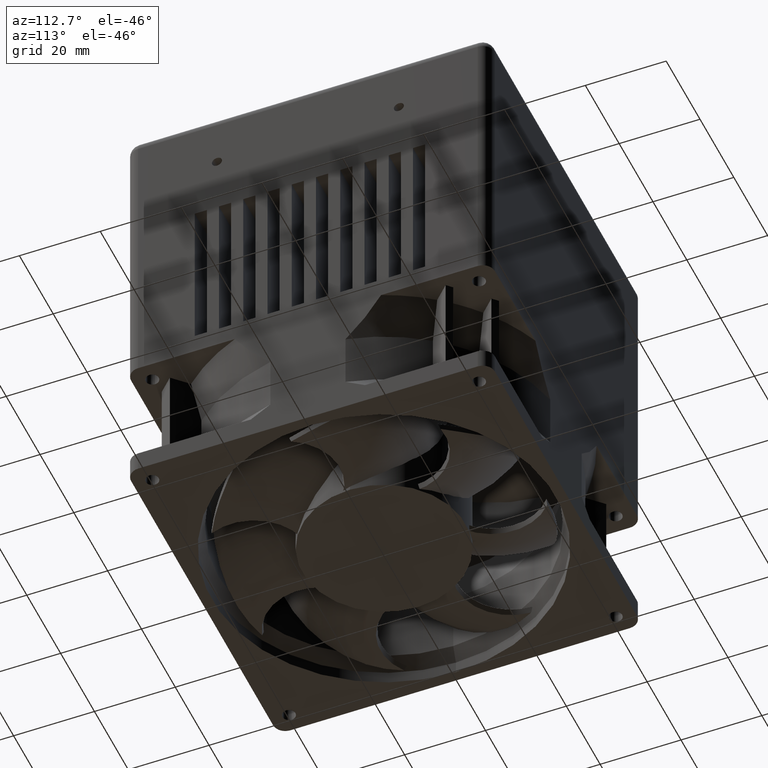
[diagram: clean part render]
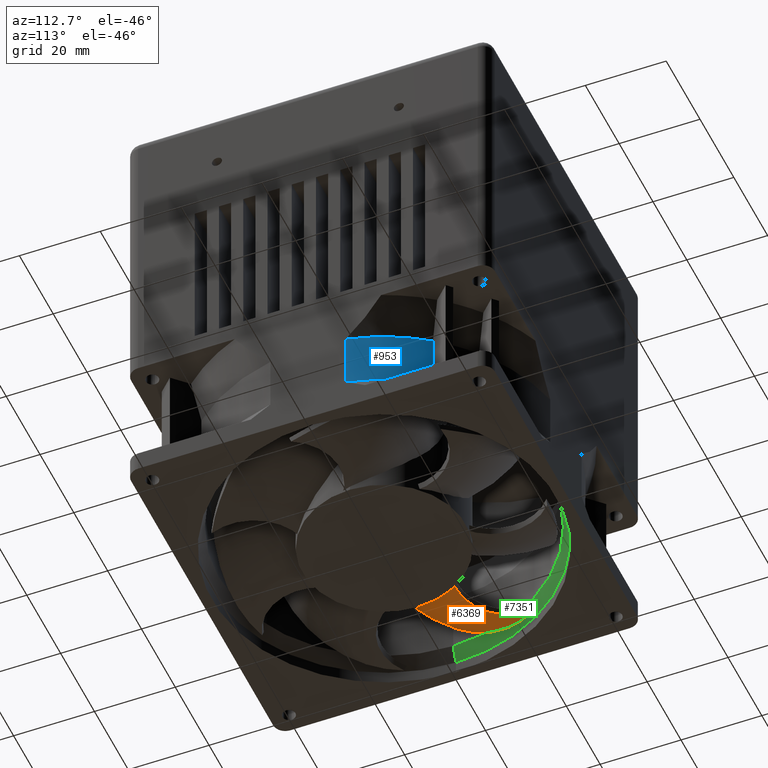
[diagram: same view with three faces highlighted in distinct colors, each labeled with its STEP entity id]
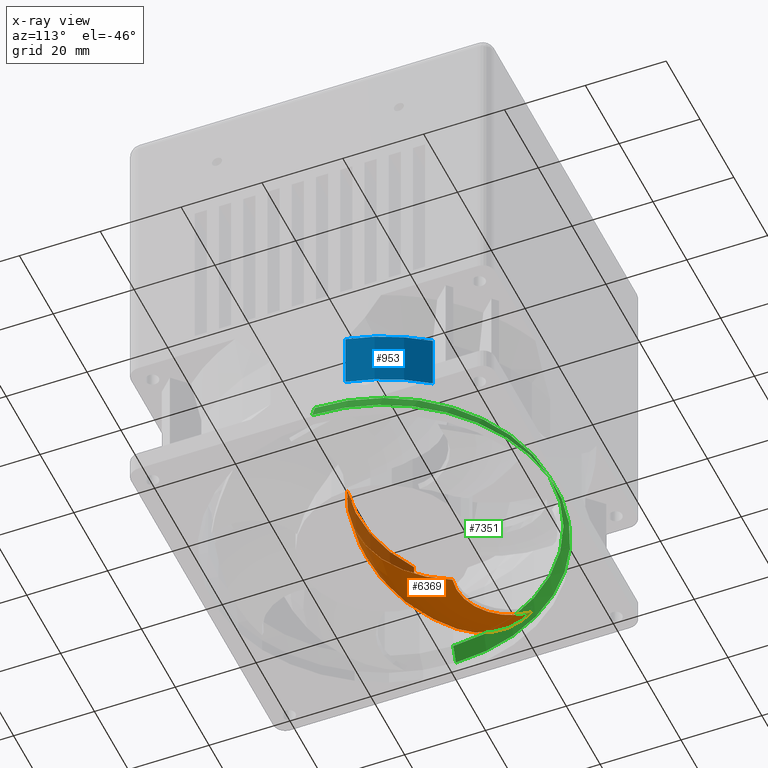
[diagram: x-ray of the same camera — body ghosted, the three highlighted faces saturated]
A machine part, auxiliary view with three faces highlighted in distinct colors.
The next image is the same camera in x-ray (body ghosted, the three faces saturated) — at least one of them is partly hidden behind the body in this view.
Their STEP definitions:

[orange] entity #6369 — the highlighted toroidal blend (fillet) surface has major radius 6.3181 mm and minor (blend) radius 31.6893 mm.
#87 = CARTESIAN_POINT ( 'NONE',  ( -39.48871616819604213, 2.690573688736887625, -28.37189030047687410 ) ) ;
#122 = CARTESIAN_POINT ( 'NONE',  ( -39.46092176732885548, -2.690912861336616224, -22.99659408642557779 ) ) ;
#159 = CARTESIAN_POINT ( 'NONE',  ( -38.62808457062914869, -8.476606295007528047, -10.87992882284130225 ) ) ;
#199 = CARTESIAN_POINT ( 'NONE',  ( -18.71174030803000576, 23.56002115659506302, -37.46596508765091471 ) ) ;
#486 = CIRCLE ( 'NONE', #4928, 31.68932982928185282 ) ;
#599 = CARTESIAN_POINT ( 'NONE',  ( -37.16048097049985444, 13.67375014657773491, -34.80014995025696578 ) ) ;
#633 = CARTESIAN_POINT ( 'NONE',  ( -38.70405119421744189, -8.123201969152296087, -12.47855729878531150 ) ) ;
#637 = ORIENTED_EDGE ( 'NONE', *, *, #3244, .T. ) ;
#707 = AXIS2_PLACEMENT_3D ( 'NONE', #199, #5636, #2729 ) ;
#711 = CARTESIAN_POINT ( 'NONE',  ( -32.85001974870990438, 22.04592214533136740, -37.30987481797507144 ) ) ;
#978 = VERTEX_POINT ( 'NONE', #1437 ) ;
#1018 = DIRECTION ( 'NONE',  ( -7.720245760606197464E-19, 3.382460673293725722E-18, -1.000000000000000000 ) ) ;
#1171 = AXIS2_PLACEMENT_3D ( 'NONE', #6759, #6086, #1325 ) ;
#1238 = CARTESIAN_POINT ( 'NONE',  ( -38.73566646343651598, 8.027996997947724367, -31.97269009776840321 ) ) ;
#1262 = B_SPLINE_CURVE_WITH_KNOTS ( 'NONE', 3,
 ( #3131, #4855, #2581, #159, #5526, #633, #5008, #7413, #7261, #2433, #4405, #6078, #3048, #1835, #3650, #122, #1318, #3729, #4288, #6157, #6715, #87, #6828, #5482, #1238, #6040, #4367, #599, #1275, #3684, #2512, #7373, #711, #6675 ),
 .UNSPECIFIED., .F., .F.,
 ( 4, 2, 2, 2, 2, 2, 2, 2, 2, 2, 2, 2, 2, 2, 2, 2, 4 ),
 ( 1.981257211114512491E-07, 0.006471670923881639274, 0.008089539123421767355, 0.009707407322961894569, 0.01294314372204215073, 0.01617888012112239302, 0.01779674832066251156, 0.01941461652020263010, 0.02265035291928285677, 0.02426822111882297531, 0.02588608931836309038, 0.03235756211652356801, 0.03559329851560379815, 0.03882903491468402135, 0.04530050771284449551, 0.04853624411192472565, 0.05177198051100495579 ),
 .UNSPECIFIED. ) ;
#1275 = CARTESIAN_POINT ( 'NONE',  ( -36.41712905594379635, 15.56043957312285286, -35.52688506911708544 ) ) ;
#1318 = CARTESIAN_POINT ( 'NONE',  ( -39.50373299394539828, -1.993267903004414254, -23.82428249980947399 ) ) ;
#1325 = DIRECTION ( 'NONE',  ( 0.2225209339563182231, -0.9749279121818227312, -3.469446951953614189E-18 ) ) ;
#1437 = CARTESIAN_POINT ( 'NONE',  ( -32.22221099291368063, 22.92821440898604735, -37.46596508765091471 ) ) ;
#1799 = VERTEX_POINT ( 'NONE', #3724 ) ;
#1835 = CARTESIAN_POINT ( 'NONE',  ( -39.34660160293697828, -3.989108859749726843, -21.26226631739348605 ) ) ;
#1859 = EDGE_LOOP ( 'NONE', ( #7408, #637, #7627, #5405 ) ) ;
#1951 = FACE_OUTER_BOUND ( 'NONE', #1859, .T. ) ;
#2180 = CIRCLE ( 'NONE', #7115, 37.88906445530331268 ) ;
#2433 = CARTESIAN_POINT ( 'NONE',  ( -39.05453367396443554, -6.238520982325875153, -17.54263143431893468 ) ) ;
#2512 = CARTESIAN_POINT ( 'NONE',  ( -34.52910174729491644, 19.30947585893120788, -36.67297233260501343 ) ) ;
#2581 = CARTESIAN_POINT ( 'NONE',  ( -38.53201006148405838, -8.909775069959492200, -8.205744206433601917 ) ) ;
#2671 = DIRECTION ( 'NONE',  ( 0.000000000000000000, 0.000000000000000000, -1.000000000000000000 ) ) ;
#2729 = DIRECTION ( 'NONE',  ( 0.2225209339563181676, -0.9749279121818227312, 0.000000000000000000 ) ) ;
#3048 = CARTESIAN_POINT ( 'NONE',  ( -39.27996685095661178, -4.599157681894102012, -20.36325359978074090 ) ) ;
#3131 = CARTESIAN_POINT ( 'NONE',  ( -38.57750027623597333, -8.703468831063641886, -3.870165569992971122 ) ) ;
#3244 = EDGE_CURVE ( 'NONE', #1799, #978, #1262, .T. ) ;
#3271 = VERTEX_POINT ( 'NONE', #6937 ) ;
#3430 = DIRECTION ( 'NONE',  ( 0.2225209339563182231, -0.9749279121818227312, 0.000000000000000000 ) ) ;
#3494 = VERTEX_POINT ( 'NONE', #5950 ) ;
#3650 = CARTESIAN_POINT ( 'NONE',  ( -39.37757329918846239, -3.672667109593628521, -21.70244080133679887 ) ) ;
#3684 = CARTESIAN_POINT ( 'NONE',  ( -35.03620576153588217, 18.37194466772774959, -36.41180830840801974 ) ) ;
#3724 = CARTESIAN_POINT ( 'NONE',  ( -38.57750027623597333, -8.703468831063641886, -3.870165569992971122 ) ) ;
#3729 = CARTESIAN_POINT ( 'NONE',  ( -39.53887407509584051, -0.8873382463560963718, -25.01800032415079755 ) ) ;
#3853 = CARTESIAN_POINT ( 'NONE',  ( -17.30582088402714902, 17.40028569095099797, -6.607069067807825213 ) ) ;
#4288 = CARTESIAN_POINT ( 'NONE',  ( -39.54574282157880560, -0.5087589734552518950, -25.40791584693484140 ) ) ;
#4367 = CARTESIAN_POINT ( 'NONE',  ( -38.04340368511077486, 10.84656886998797276, -33.48410331278881102 ) ) ;
#4405 = CARTESIAN_POINT ( 'NONE',  ( -39.13314456713329292, -5.735088705496751871, -18.50130434507896027 ) ) ;
#4501 = DIRECTION ( 'NONE',  ( -0.9749279121818227312, -0.2225209339563182231, 0.000000000000000000 ) ) ;
#4590 = TOROIDAL_SURFACE ( 'NONE', #1171, 6.318144540409138976, 31.68932982928184572 ) ;
#4855 = CARTESIAN_POINT ( 'NONE',  ( -38.51941602026734301, -8.960923122469564461, -6.047729381260809056 ) ) ;
#4928 = AXIS2_PLACEMENT_3D ( 'NONE', #3853, #4501, #2671 ) ;
#4946 = EDGE_CURVE ( 'NONE', #3494, #3271, #486, .T. ) ;
#5008 = CARTESIAN_POINT ( 'NONE',  ( -38.73372077961792570, -7.981155040685784741, -13.00605440266879320 ) ) ;
#5310 = CARTESIAN_POINT ( 'NONE',  ( -18.71174030803000576, 23.56002115659506302, -3.870165569992971122 ) ) ;
#5405 = ORIENTED_EDGE ( 'NONE', *, *, #4946, .T. ) ;
#5482 = CARTESIAN_POINT ( 'NONE',  ( -38.91360497321779377, 7.108762963805483004, -31.42306409760644570 ) ) ;
#5526 = CARTESIAN_POINT ( 'NONE',  ( -38.65114240153739189, -8.371330845948154575, -11.41359048437680990 ) ) ;
#5636 = DIRECTION ( 'NONE',  ( -7.720245760606197464E-19, 3.382460673293725722E-18, -1.000000000000000000 ) ) ;
#5950 = CARTESIAN_POINT ( 'NONE',  ( -15.70209225150754406, 10.37389145644057642, -37.46596508765091471 ) ) ;
#6040 = CARTESIAN_POINT ( 'NONE',  ( -38.29918867468462196, 9.903168130783472023, -33.00672303261999474 ) ) ;
#6078 = CARTESIAN_POINT ( 'NONE',  ( -39.24421825424141019, -4.893395354832520638, -19.90335211122503267 ) ) ;
#6086 = DIRECTION ( 'NONE',  ( -7.720245760606197464E-19, 3.382460673293725722E-18, -1.000000000000000000 ) ) ;
#6157 = CARTESIAN_POINT ( 'NONE',  ( -39.54810945178908810, 0.2676747893146527724, -26.17233802616802407 ) ) ;
#6369 = ADVANCED_FACE ( 'NONE', ( #1951 ), #4590, .T. ) ;
#6544 = CIRCLE ( 'NONE', #707, 13.52523559474753689 ) ;
#6675 = CARTESIAN_POINT ( 'NONE',  ( -32.22221099291368063, 22.92821440898604735, -37.46596508765091471 ) ) ;
#6715 = CARTESIAN_POINT ( 'NONE',  ( -39.54356724128049194, 0.6664733481356220901, -26.54765534918109537 ) ) ;
#6759 = CARTESIAN_POINT ( 'NONE',  ( -18.71174030803000576, 23.56002115659506302, -6.607069067807825213 ) ) ;
#6828 = CARTESIAN_POINT ( 'NONE',  ( -39.34255255489241421, 4.410727632208867988, -29.67269570411032120 ) ) ;
#6831 = EDGE_CURVE ( 'NONE', #3494, #978, #6544, .T. ) ;
#6937 = CARTESIAN_POINT ( 'NONE',  ( -10.28063029870477152, -13.37908534733630184, -3.870165569992971122 ) ) ;
#7115 = AXIS2_PLACEMENT_3D ( 'NONE', #5310, #1018, #3430 ) ;
#7261 = CARTESIAN_POINT ( 'NONE',  ( -38.90272727704662969, -7.124152928276747510, -15.57383841940835190 ) ) ;
#7373 = CARTESIAN_POINT ( 'NONE',  ( -33.43649707433083762, 21.14510318773492870, -37.12148506400365022 ) ) ;
#7408 = ORIENTED_EDGE ( 'NONE', *, *, #7500, .T. ) ;
#7413 = CARTESIAN_POINT ( 'NONE',  ( -38.82952719441633604, -7.506395337091508857, -14.56373664338674878 ) ) ;
#7500 = EDGE_CURVE ( 'NONE', #3271, #1799, #2180, .T. ) ;
#7627 = ORIENTED_EDGE ( 'NONE', *, *, #6831, .F. ) ;

[blue] entity #953 — the highlighted cylindrical surface (partial cylindrical patch) has radius 45.9484 mm, axis along (-0, -0, 1).
#170 = DIRECTION ( 'NONE',  ( -3.469446951953614189E-18, -0.000000000000000000, 1.000000000000000000 ) ) ;
#399 = CARTESIAN_POINT ( 'NONE',  ( 44.99999999999997868, 9.287214697461354973, -16.00000000000000000 ) ) ;
#794 = CYLINDRICAL_SURFACE ( 'NONE', #805, 45.94836620421601481 ) ;
#805 = AXIS2_PLACEMENT_3D ( 'NONE', #5169, #170, #872 ) ;
#872 = DIRECTION ( 'NONE',  ( 1.000000000000000000, 0.000000000000000000, 3.469446951953614189E-18 ) ) ;
#953 = ADVANCED_FACE ( 'NONE', ( #6838 ), #794, .T. ) ;
#1043 = DIRECTION ( 'NONE',  ( -3.469446951953614189E-18, -0.000000000000000000, 1.000000000000000000 ) ) ;
#1093 = DIRECTION ( 'NONE',  ( -3.469446951953614189E-18, -0.000000000000000000, 1.000000000000000000 ) ) ;
#1251 = VERTEX_POINT ( 'NONE', #399 ) ;
#2342 = CARTESIAN_POINT ( 'NONE',  ( 36.81447078935199357, 27.49449212727323655, -29.99999999999999645 ) ) ;
#2390 = ORIENTED_EDGE ( 'NONE', *, *, #6158, .T. ) ;
#2473 = EDGE_CURVE ( 'NONE', #6984, #5868, #7519, .T. ) ;
#2529 = DIRECTION ( 'NONE',  ( 3.469446951953614189E-18, 0.000000000000000000, -1.000000000000000000 ) ) ;
#2568 = VERTEX_POINT ( 'NONE', #7733 ) ;
#2713 = AXIS2_PLACEMENT_3D ( 'NONE', #7195, #1093, #6529 ) ;
#4113 = DIRECTION ( 'NONE',  ( -3.469446951953614189E-18, -0.000000000000000000, 1.000000000000000000 ) ) ;
#4410 = VECTOR ( 'NONE', #2529, 1000.000000000000000 ) ;
#4457 = ORIENTED_EDGE ( 'NONE', *, *, #2473, .T. ) ;
#4857 = EDGE_CURVE ( 'NONE', #1251, #6984, #4875, .T. ) ;
#4861 = ORIENTED_EDGE ( 'NONE', *, *, #4857, .T. ) ;
#4875 = LINE ( 'NONE', #6694, #4410 ) ;
#5169 = CARTESIAN_POINT ( 'NONE',  ( 0.000000000000000000, 0.000000000000000000, 0.000000000000000000 ) ) ;
#5348 = CARTESIAN_POINT ( 'NONE',  ( 5.551115123125782702E-17, 0.000000000000000000, -16.00000000000000000 ) ) ;
#5519 = EDGE_LOOP ( 'NONE', ( #2390, #7357, #4861, #4457 ) ) ;
#5554 = CARTESIAN_POINT ( 'NONE',  ( 44.99999999999999289, 9.287214697461314117, -29.99999999999998579 ) ) ;
#5868 = VERTEX_POINT ( 'NONE', #2342 ) ;
#5949 = DIRECTION ( 'NONE',  ( 1.000000000000000000, 0.000000000000000000, 0.000000000000000000 ) ) ;
#6158 = EDGE_CURVE ( 'NONE', #5868, #2568, #7227, .T. ) ;
#6299 = CIRCLE ( 'NONE', #7312, 45.94836620421601481 ) ;
#6529 = DIRECTION ( 'NONE',  ( 1.000000000000000000, 0.000000000000000000, 0.000000000000000000 ) ) ;
#6694 = CARTESIAN_POINT ( 'NONE',  ( 44.99999999999997868, 9.287214697461354973, 0.000000000000000000 ) ) ;
#6838 = FACE_OUTER_BOUND ( 'NONE', #5519, .T. ) ;
#6867 = VECTOR ( 'NONE', #1043, 1000.000000000000000 ) ;
#6910 = EDGE_CURVE ( 'NONE', #1251, #2568, #6299, .T. ) ;
#6984 = VERTEX_POINT ( 'NONE', #5554 ) ;
#7195 = CARTESIAN_POINT ( 'NONE',  ( 1.040834085586084133E-16, 0.000000000000000000, -29.99999999999999645 ) ) ;
#7227 = LINE ( 'NONE', #7710, #6867 ) ;
#7312 = AXIS2_PLACEMENT_3D ( 'NONE', #5348, #4113, #5949 ) ;
#7357 = ORIENTED_EDGE ( 'NONE', *, *, #6910, .F. ) ;
#7519 = CIRCLE ( 'NONE', #2713, 45.94836620421601481 ) ;
#7710 = CARTESIAN_POINT ( 'NONE',  ( 36.81447078935199357, 27.49449212727323655, 1.115582676871917118E-16 ) ) ;
#7733 = CARTESIAN_POINT ( 'NONE',  ( 36.81447078935198647, 27.49449212727323300, -16.00000000000000000 ) ) ;

[green] entity #7351 — the highlighted conical surface has half-angle 22.077 deg.
#4 = DIRECTION ( 'NONE',  ( -0.000000000000000000, -0.000000000000000000, 1.000000000000000000 ) ) ;
#59 = LINE ( 'NONE', #6724, #7394 ) ;
#109 = ORIENTED_EDGE ( 'NONE', *, *, #811, .F. ) ;
#227 = AXIS2_PLACEMENT_3D ( 'NONE', #5422, #1217, #1130 ) ;
#383 = LINE ( 'NONE', #2799, #7434 ) ;
#395 = CARTESIAN_POINT ( 'NONE',  ( 42.53170406992085617, 5.208631525151103265E-15, -34.87923107124615285 ) ) ;
#519 = EDGE_CURVE ( 'NONE', #5649, #3499, #3827, .T. ) ;
#752 = DIRECTION ( 'NONE',  ( -0.3758462142492305924, 0.000000000000000000, -0.9266820507782167482 ) ) ;
#811 = EDGE_CURVE ( 'NONE', #5649, #2543, #59, .T. ) ;
#1130 = DIRECTION ( 'NONE',  ( 1.000000000000000000, 0.000000000000000000, 0.000000000000000000 ) ) ;
#1217 = DIRECTION ( 'NONE',  ( -0.000000000000000000, -0.000000000000000000, 1.000000000000000000 ) ) ;
#1243 = ORIENTED_EDGE ( 'NONE', *, *, #4195, .T. ) ;
#1296 = CONICAL_SURFACE ( 'NONE', #5722, 42.53170406992085617, 0.3853097712676198938 ) ;
#1572 = DIRECTION ( 'NONE',  ( -1.000000000000000000, 0.000000000000000000, 0.000000000000000000 ) ) ;
#1871 = CARTESIAN_POINT ( 'NONE',  ( 40.94836620421602191, 0.000000000000000000, -30.97537166056388003 ) ) ;
#2216 = ORIENTED_EDGE ( 'NONE', *, *, #519, .T. ) ;
#2506 = CARTESIAN_POINT ( 'NONE',  ( 0.000000000000000000, 0.000000000000000000, -30.97537166056388003 ) ) ;
#2543 = VERTEX_POINT ( 'NONE', #395 ) ;
#2563 = CARTESIAN_POINT ( 'NONE',  ( -42.53170406992085617, 0.000000000000000000, -34.87923107124615285 ) ) ;
#2799 = CARTESIAN_POINT ( 'NONE',  ( -42.53170406992085617, 0.000000000000000000, -34.87923107124615285 ) ) ;
#3074 = VERTEX_POINT ( 'NONE', #2563 ) ;
#3499 = VERTEX_POINT ( 'NONE', #7091 ) ;
#3827 = CIRCLE ( 'NONE', #4869, 40.94836620421602191 ) ;
#4195 = EDGE_CURVE ( 'NONE', #3499, #3074, #383, .T. ) ;
#4748 = EDGE_CURVE ( 'NONE', #2543, #3074, #5806, .T. ) ;
#4869 = AXIS2_PLACEMENT_3D ( 'NONE', #2506, #4, #5470 ) ;
#5183 = DIRECTION ( 'NONE',  ( 0.000000000000000000, 0.000000000000000000, -1.000000000000000000 ) ) ;
#5422 = CARTESIAN_POINT ( 'NONE',  ( 0.000000000000000000, 0.000000000000000000, -34.87923107124615285 ) ) ;
#5470 = DIRECTION ( 'NONE',  ( 1.000000000000000000, 0.000000000000000000, 0.000000000000000000 ) ) ;
#5649 = VERTEX_POINT ( 'NONE', #1871 ) ;
#5722 = AXIS2_PLACEMENT_3D ( 'NONE', #5859, #5183, #1572 ) ;
#5806 = CIRCLE ( 'NONE', #227, 42.53170406992085617 ) ;
#5859 = CARTESIAN_POINT ( 'NONE',  ( 0.000000000000000000, 0.000000000000000000, -34.87923107124615285 ) ) ;
#5879 = ORIENTED_EDGE ( 'NONE', *, *, #4748, .F. ) ;
#6204 = DIRECTION ( 'NONE',  ( 0.3758462142492305924, 4.602788632519706035E-17, -0.9266820507782167482 ) ) ;
#6724 = CARTESIAN_POINT ( 'NONE',  ( 42.53170406992085617, 5.208631525151103265E-15, -34.87923107124615285 ) ) ;
#7091 = CARTESIAN_POINT ( 'NONE',  ( -40.94836620421602191, 5.014728560230679891E-15, -30.97537166056388003 ) ) ;
#7185 = EDGE_LOOP ( 'NONE', ( #109, #2216, #1243, #5879 ) ) ;
#7351 = ADVANCED_FACE ( 'NONE', ( #7755 ), #1296, .F. ) ;
#7394 = VECTOR ( 'NONE', #6204, 1000.000000000000000 ) ;
#7434 = VECTOR ( 'NONE', #752, 1000.000000000000000 ) ;
#7755 = FACE_OUTER_BOUND ( 'NONE', #7185, .T. ) ;